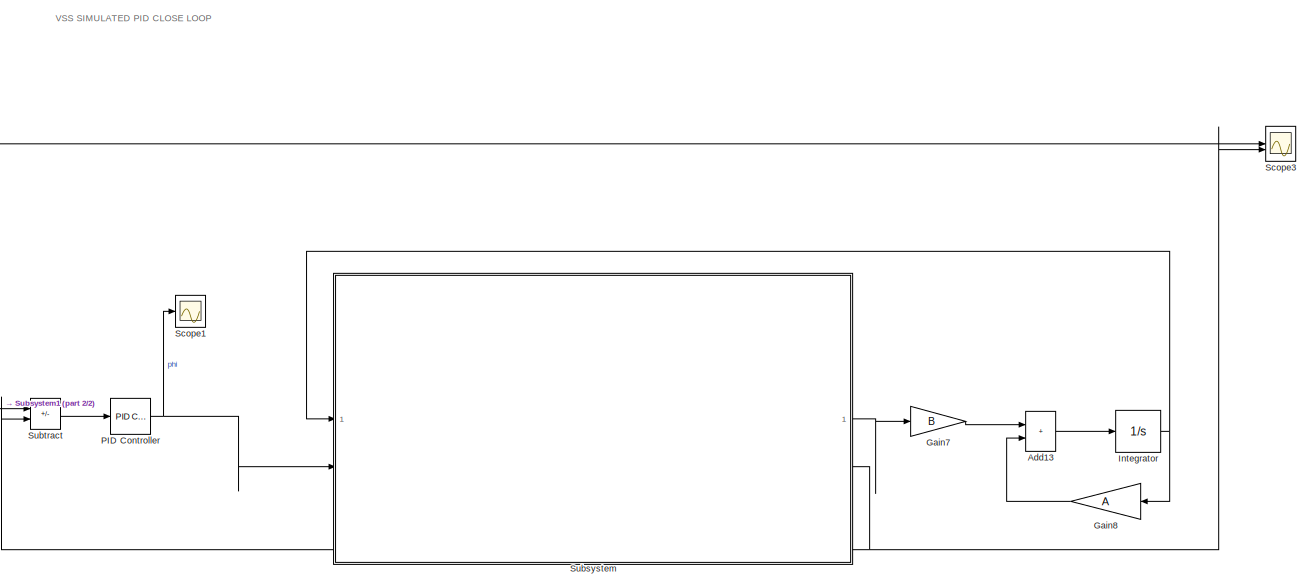
[diagram: root canvas - part 1/2, most of the canvas]
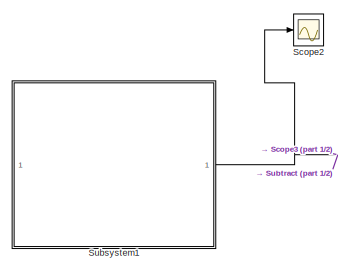
[diagram: root canvas - part 2/2, middle left region]
MODEL slx_037cbb7ec115
KIND model
CONFIG AbsTol = auto
CONFIG EnableMultiTasking = off
CONFIG FixedStep = 0.001
CONFIG MaxStep = auto
CONFIG MinStep = auto
CONFIG RelTol = 1e-7
CONFIG SampleTimeConstraint = Unconstrained
CONFIG SolverName = VariableStepAuto
CONFIG StartTime = 0.0
CONFIG StopTime = 10.0
BLOCK [Sum] Add13
  IconShape = rectangular
BLOCK [Gain] Gain7
  Gain = B
  Multiplication = Matrix(K*u)
BLOCK [Gain] Gain8
  Gain = A
  Multiplication = Matrix(K*u)
BLOCK [Integrator] Integrator
  InitialCondition = [0;0;-1.6;0;0;0]
BLOCK [Reference] PID Controller  REF=slpidlib/PID Controller
  LibrarySourceBlock = simulink/Continuous/PID Controller
  SourceBlock = slpidlib/PID Controller
  SourceType = PID 1dof
BLOCK [Scope] Scope1
  Floating = off
  NumInputPorts = 1
  ScopeSpecificationString = Simulink.scopes.TimeScopeBlockCfg('CurrentConfiguration', extmgr.ConfigurationSet(extmgr.Configuration('Core','General UI',true),extmgr.Configuration('Core','Source UI',true),extmgr.Configuration('Sources','WiredSimulink',true,'DataLoggingVariableName','ScopeData2'),extmgr.Configuration('Visuals','Time Domain',true,'TimeAxisLabels','All','SerializedDisplays',{struct('MinYLimReal','-3.34089','MaxYL...<+1553ch>
BLOCK [Scope] Scope2
  Floating = off
  NumInputPorts = 1
  ScopeSpecificationString = Simulink.scopes.TimeScopeBlockCfg('CurrentConfiguration', extmgr.ConfigurationSet(extmgr.Configuration('Core','General UI',true),extmgr.Configuration('Core','Source UI',true),extmgr.Configuration('Sources','WiredSimulink',true,'DataLoggingVariableName','ScopeData4'),extmgr.Configuration('Visuals','Time Domain',true,'TimeAxisLabels','All','SerializedDisplays',{struct('MinYLimReal','-0.1426','MaxYLi...<+1556ch>
BLOCK [Scope] Scope3
  Floating = off
  NumInputPorts = 2
  ScopeSpecificationString = Simulink.scopes.TimeScopeBlockCfg('CurrentConfiguration', extmgr.ConfigurationSet(extmgr.Configuration('Core','General UI',true),extmgr.Configuration('Core','Source UI',true),extmgr.Configuration('Sources','WiredSimulink',true,'DataLoggingVariableName','ScopeData1'),extmgr.Configuration('Visuals','Time Domain',true,'TimeAxisLabels','All','SerializedDisplays',{struct('MinYLimReal','-1.91481','MaxYL...<+1623ch>
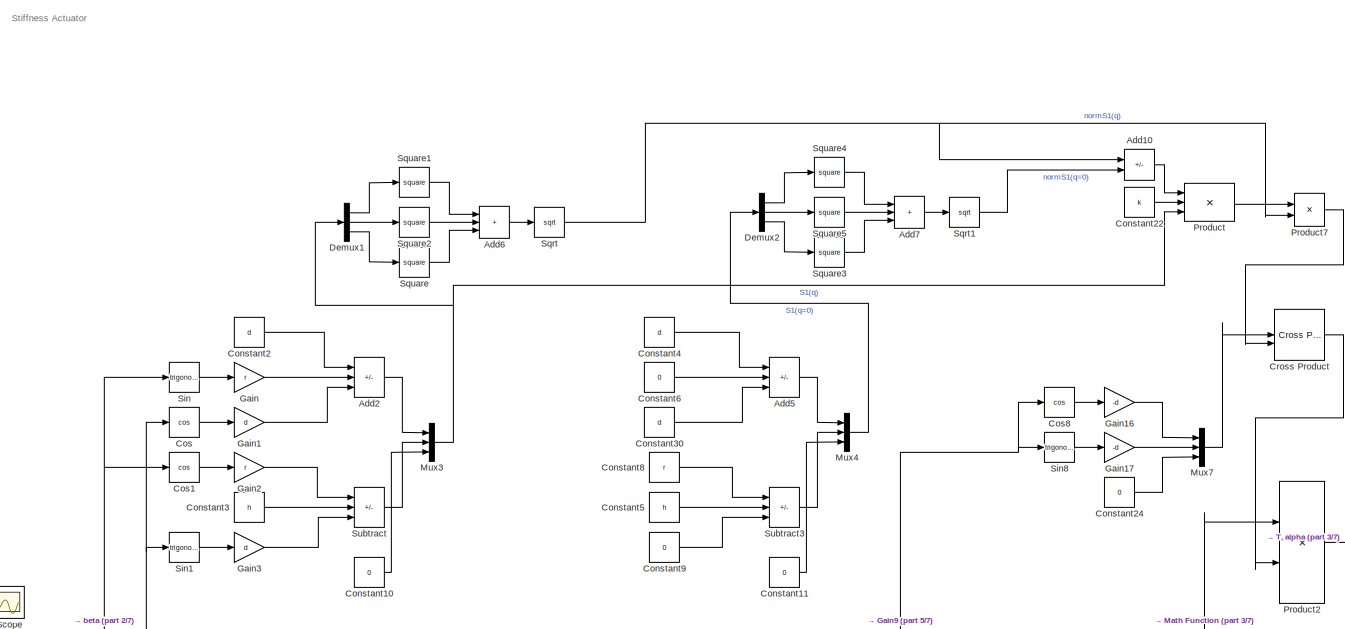
[diagram: Subsystem - part 1/7, top center region]
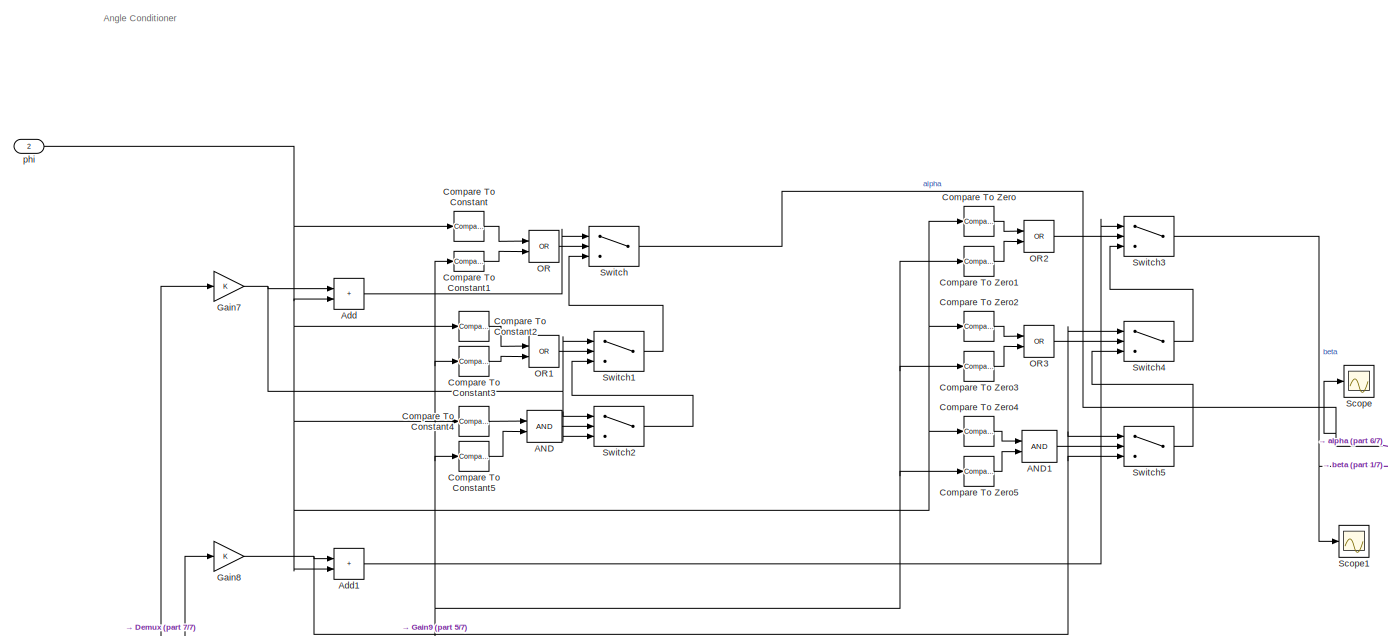
[diagram: Subsystem - part 2/7, top left region]
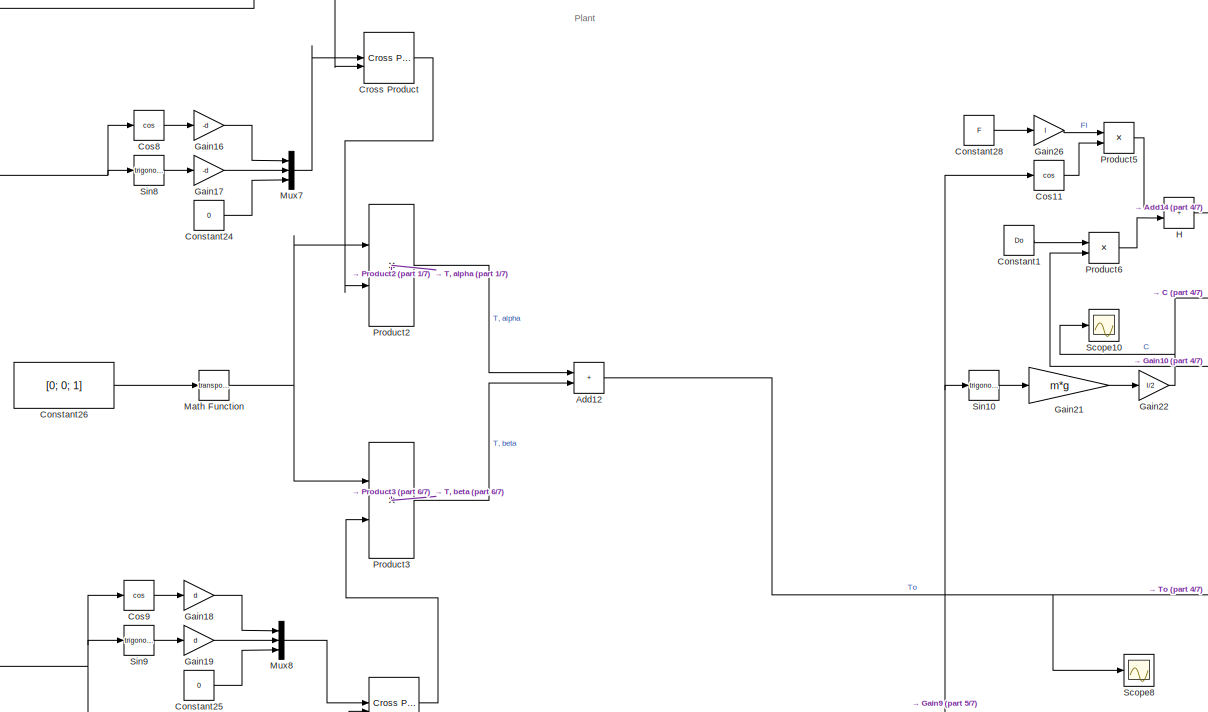
[diagram: Subsystem - part 3/7, top right region]
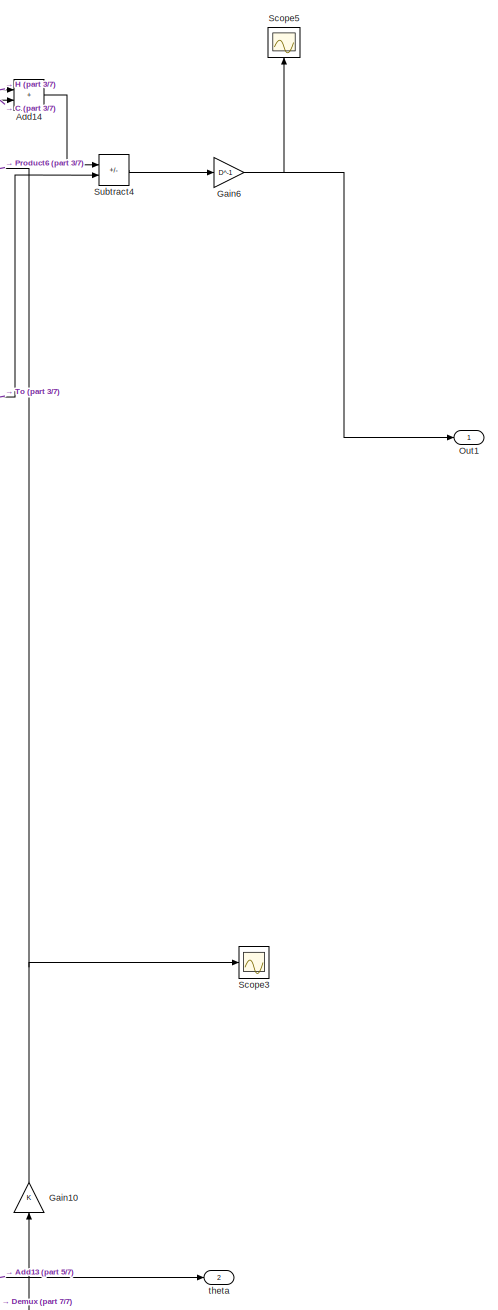
[diagram: Subsystem - part 4/7, middle right region]
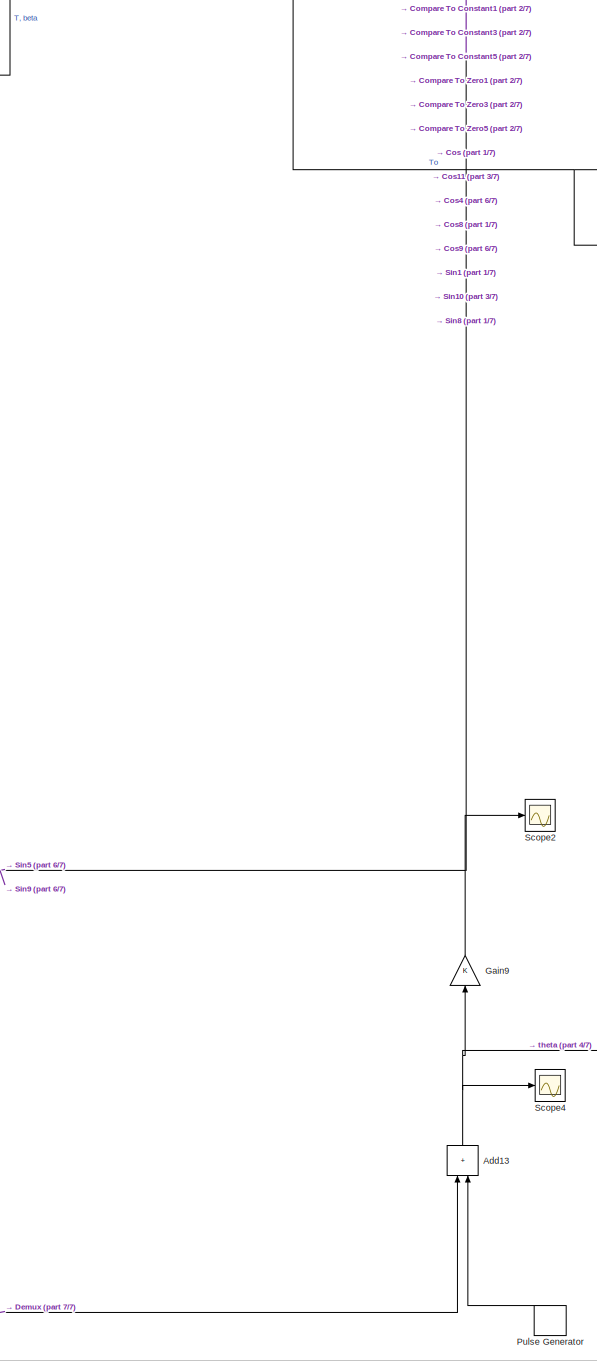
[diagram: Subsystem - part 5/7, middle right region]
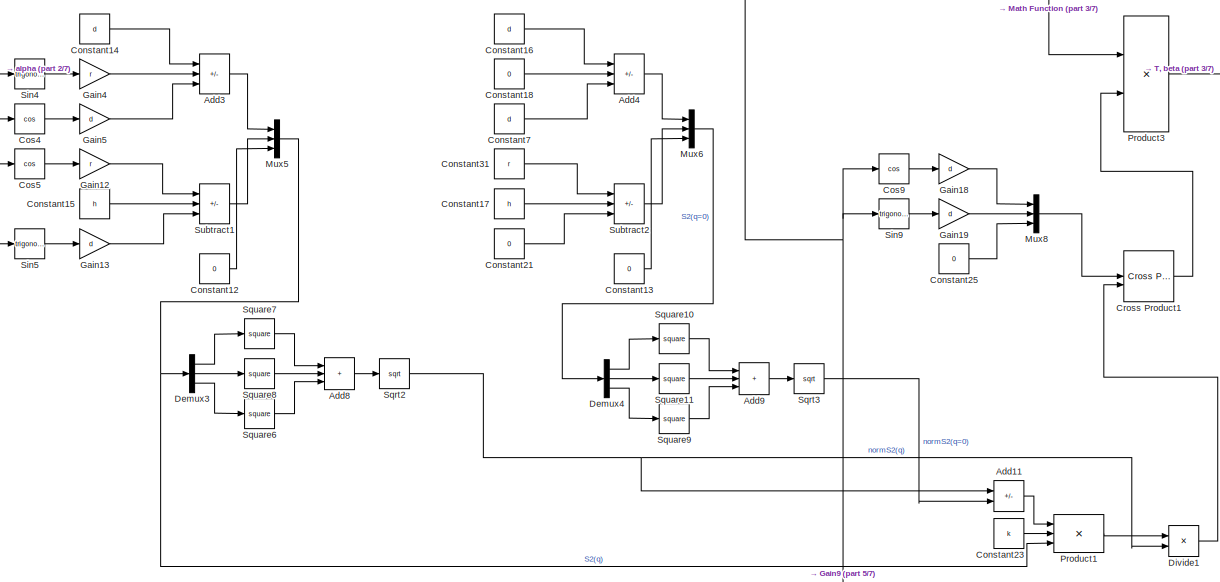
[diagram: Subsystem - part 6/7, central region]
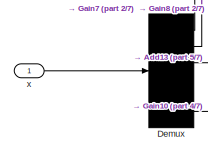
[diagram: Subsystem - part 7/7, bottom left region]
BLOCK [SubSystem] Subsystem
BLOCK [Logic] Subsystem/AND
  AllPortsSameDT = off
  IconShape = distinctive
  OutDataTypeStr = boolean
BLOCK [Logic] Subsystem/AND1
  AllPortsSameDT = off
  IconShape = distinctive
  OutDataTypeStr = boolean
BLOCK [Sum] Subsystem/Add
  IconShape = rectangular
BLOCK [Sum] Subsystem/Add1
  IconShape = rectangular
BLOCK [Sum] Subsystem/Add10
  IconShape = rectangular
  Inputs = +-
BLOCK [Sum] Subsystem/Add11
  IconShape = rectangular
  Inputs = +-
BLOCK [Sum] Subsystem/Add12
  IconShape = rectangular
BLOCK [Sum] Subsystem/Add13
  IconShape = rectangular
  NameLocation = right
BLOCK [Sum] Subsystem/Add14
  IconShape = rectangular
BLOCK [Sum] Subsystem/Add2
  IconShape = rectangular
  Inputs = ++-
BLOCK [Sum] Subsystem/Add3
  IconShape = rectangular
  Inputs = --+
BLOCK [Sum] Subsystem/Add4
  IconShape = rectangular
  Inputs = --+
BLOCK [Sum] Subsystem/Add5
  IconShape = rectangular
  Inputs = ++-
BLOCK [Sum] Subsystem/Add6
  IconShape = rectangular
  Inputs = +++
BLOCK [Sum] Subsystem/Add7
  IconShape = rectangular
  Inputs = +++
BLOCK [Sum] Subsystem/Add8
  IconShape = rectangular
  Inputs = +++
BLOCK [Sum] Subsystem/Add9
  IconShape = rectangular
  Inputs = +++
BLOCK [Reference] Subsystem/Compare To Constant  REF=simulink/Logic and Bit
Operations/Compare
To Constant
  SourceBlock = simulink/Logic and Bit\nOperations/Compare\nTo Constant
  SourceType = Compare To Constant
BLOCK [Reference] Subsystem/Compare To Constant1  REF=simulink/Logic and Bit
Operations/Compare
To Constant
  SourceBlock = simulink/Logic and Bit\nOperations/Compare\nTo Constant
  SourceType = Compare To Constant
BLOCK [Reference] Subsystem/Compare To Constant2  REF=simulink/Logic and Bit
Operations/Compare
To Constant
  SourceBlock = simulink/Logic and Bit\nOperations/Compare\nTo Constant
  SourceType = Compare To Constant
BLOCK [Reference] Subsystem/Compare To Constant3  REF=simulink/Logic and Bit
Operations/Compare
To Constant
  SourceBlock = simulink/Logic and Bit\nOperations/Compare\nTo Constant
  SourceType = Compare To Constant
BLOCK [Reference] Subsystem/Compare To Constant4  REF=simulink/Logic and Bit
Operations/Compare
To Constant
  SourceBlock = simulink/Logic and Bit\nOperations/Compare\nTo Constant
  SourceType = Compare To Constant
BLOCK [Reference] Subsystem/Compare To Constant5  REF=simulink/Logic and Bit
Operations/Compare
To Constant
  SourceBlock = simulink/Logic and Bit\nOperations/Compare\nTo Constant
  SourceType = Compare To Constant
BLOCK [Reference] Subsystem/Compare To Zero  REF=simulink/Logic and Bit
Operations/Compare
To Zero
  SourceBlock = simulink/Logic and Bit\nOperations/Compare\nTo Zero
  SourceType = Compare To Zero
BLOCK [Reference] Subsystem/Compare To Zero1  REF=simulink/Logic and Bit
Operations/Compare
To Zero
  SourceBlock = simulink/Logic and Bit\nOperations/Compare\nTo Zero
  SourceType = Compare To Zero
BLOCK [Reference] Subsystem/Compare To Zero2  REF=simulink/Logic and Bit
Operations/Compare
To Zero
  SourceBlock = simulink/Logic and Bit\nOperations/Compare\nTo Zero
  SourceType = Compare To Zero
BLOCK [Reference] Subsystem/Compare To Zero3  REF=simulink/Logic and Bit
Operations/Compare
To Zero
  SourceBlock = simulink/Logic and Bit\nOperations/Compare\nTo Zero
  SourceType = Compare To Zero
BLOCK [Reference] Subsystem/Compare To Zero4  REF=simulink/Logic and Bit
Operations/Compare
To Zero
  SourceBlock = simulink/Logic and Bit\nOperations/Compare\nTo Zero
  SourceType = Compare To Zero
BLOCK [Reference] Subsystem/Compare To Zero5  REF=simulink/Logic and Bit
Operations/Compare
To Zero
  SourceBlock = simulink/Logic and Bit\nOperations/Compare\nTo Zero
  SourceType = Compare To Zero
BLOCK [Constant] Subsystem/Constant1
  Value = Do
BLOCK [Constant] Subsystem/Constant10
  Value = 0
BLOCK [Constant] Subsystem/Constant11
  Value = 0
BLOCK [Constant] Subsystem/Constant12
  Value = 0
BLOCK [Constant] Subsystem/Constant13
  Value = 0
BLOCK [Constant] Subsystem/Constant14
  Value = d
BLOCK [Constant] Subsystem/Constant15
  Value = h
BLOCK [Constant] Subsystem/Constant16
  Value = d
BLOCK [Constant] Subsystem/Constant17
  Value = h
BLOCK [Constant] Subsystem/Constant18
  Value = 0
BLOCK [Constant] Subsystem/Constant2
  Value = d
BLOCK [Constant] Subsystem/Constant21
  Value = 0
BLOCK [Constant] Subsystem/Constant22
  Value = k
BLOCK [Constant] Subsystem/Constant23
  Value = k
BLOCK [Constant] Subsystem/Constant24
  Value = 0
BLOCK [Constant] Subsystem/Constant25
  Value = 0
BLOCK [Constant] Subsystem/Constant26
  Value = [0; 0; 1]
BLOCK [Constant] Subsystem/Constant28
  Value = F
BLOCK [Constant] Subsystem/Constant3
  Value = h
BLOCK [Constant] Subsystem/Constant30
  Value = d
BLOCK [Constant] Subsystem/Constant31
  Value = r
BLOCK [Constant] Subsystem/Constant4
  Value = d
BLOCK [Constant] Subsystem/Constant5
  Value = h
BLOCK [Constant] Subsystem/Constant6
  Value = 0
BLOCK [Constant] Subsystem/Constant7
  Value = d
BLOCK [Constant] Subsystem/Constant8
  Value = r
BLOCK [Constant] Subsystem/Constant9
  Value = 0
BLOCK [Trigonometry] Subsystem/Cos
  Operator = cos
BLOCK [Trigonometry] Subsystem/Cos1
  Operator = cos
BLOCK [Trigonometry] Subsystem/Cos11
  Operator = cos
BLOCK [Trigonometry] Subsystem/Cos4
  Operator = cos
BLOCK [Trigonometry] Subsystem/Cos5
  Operator = cos
BLOCK [Trigonometry] Subsystem/Cos8
  Operator = cos
BLOCK [Trigonometry] Subsystem/Cos9
  Operator = cos
BLOCK [Reference] Subsystem/Cross Product  REF=matrix_library/Cross Product
  SourceBlock = matrix_library/Cross Product
  SourceType = CrossProduct
BLOCK [Reference] Subsystem/Cross Product1  REF=matrix_library/Cross Product
  SourceBlock = matrix_library/Cross Product
  SourceType = CrossProduct
BLOCK [Demux] Subsystem/Demux
  Outputs = 6
BLOCK [Demux] Subsystem/Demux1
  Outputs = 3
BLOCK [Demux] Subsystem/Demux2
  Outputs = 3
BLOCK [Demux] Subsystem/Demux3
  Outputs = 3
BLOCK [Demux] Subsystem/Demux4
  Outputs = 3
BLOCK [Product] Subsystem/Divide1
  Inputs = */
BLOCK [Gain] Subsystem/Gain
  Gain = r
BLOCK [Gain] Subsystem/Gain1
  Gain = d
BLOCK [Gain] Subsystem/Gain10
  NameLocation = left
BLOCK [Gain] Subsystem/Gain12
  Gain = r
BLOCK [Gain] Subsystem/Gain13
  Gain = d
BLOCK [Gain] Subsystem/Gain16
  Gain = -d
BLOCK [Gain] Subsystem/Gain17
  Gain = -d
BLOCK [Gain] Subsystem/Gain18
  Gain = d
BLOCK [Gain] Subsystem/Gain19
  Gain = d
BLOCK [Gain] Subsystem/Gain2
  Gain = r
BLOCK [Gain] Subsystem/Gain21
  Gain = m*g
BLOCK [Gain] Subsystem/Gain22
  Gain = l/2
BLOCK [Gain] Subsystem/Gain26
  Gain = l
BLOCK [Gain] Subsystem/Gain3
  Gain = d
BLOCK [Gain] Subsystem/Gain4
  Gain = r
BLOCK [Gain] Subsystem/Gain5
  Gain = d
BLOCK [Gain] Subsystem/Gain6
  Gain = D^-1
BLOCK [Gain] Subsystem/Gain7
BLOCK [Gain] Subsystem/Gain8
BLOCK [Gain] Subsystem/Gain9
  NameLocation = left
BLOCK [Sum] Subsystem/H
  IconShape = rectangular
BLOCK [Math] Subsystem/Math Function
  Operator = transpose
BLOCK [Mux] Subsystem/Mux3
  DisplayOption = bar
  Inputs = 3
BLOCK [Mux] Subsystem/Mux4
  DisplayOption = bar
  Inputs = 3
BLOCK [Mux] Subsystem/Mux5
  DisplayOption = bar
  Inputs = 3
BLOCK [Mux] Subsystem/Mux6
  DisplayOption = bar
  Inputs = 3
BLOCK [Mux] Subsystem/Mux7
  DisplayOption = bar
  Inputs = 3
BLOCK [Mux] Subsystem/Mux8
  DisplayOption = bar
  Inputs = 3
BLOCK [Logic] Subsystem/OR
  AllPortsSameDT = off
  IconShape = distinctive
  Operator = OR
  OutDataTypeStr = boolean
BLOCK [Logic] Subsystem/OR1
  AllPortsSameDT = off
  IconShape = distinctive
  Operator = OR
  OutDataTypeStr = boolean
BLOCK [Logic] Subsystem/OR2
  AllPortsSameDT = off
  IconShape = distinctive
  Operator = OR
  OutDataTypeStr = boolean
BLOCK [Logic] Subsystem/OR3
  AllPortsSameDT = off
  IconShape = distinctive
  Operator = OR
  OutDataTypeStr = boolean
BLOCK [Outport] Subsystem/Out1
BLOCK [Product] Subsystem/Product
  Inputs = 3
BLOCK [Product] Subsystem/Product1
  Inputs = 3
BLOCK [Product] Subsystem/Product2
  Multiplication = Matrix(*)
BLOCK [Product] Subsystem/Product3
  Multiplication = Matrix(*)
BLOCK [Product] Subsystem/Product5
BLOCK [Product] Subsystem/Product6
BLOCK [Product] Subsystem/Product7
  Inputs = */
BLOCK [DiscretePulseGenerator] Subsystem/Pulse Generator
  Amplitude = 0.02
  NameLocation = right
  Period = 2.5
  PulseType = Time based
  PulseWidth = 0.5
BLOCK [Scope] Subsystem/Scope
  Floating = off
  NumInputPorts = 1
  ScopeSpecificationString = Simulink.scopes.TimeScopeBlockCfg('CurrentConfiguration', extmgr.ConfigurationSet(extmgr.Configuration('Core','General UI',true),extmgr.Configuration('Core','Source UI',true),extmgr.Configuration('Sources','WiredSimulink',true,'DataLoggingVariableName','ScopeData3'),extmgr.Configuration('Visuals','Time Domain',true,'SerializedDisplays',{struct('MinYLimReal','-3.31098','MaxYLimReal','29.59633','YLa...<+1487ch>
BLOCK [Scope] Subsystem/Scope1
  Floating = off
  NumInputPorts = 1
  ScopeSpecificationString = Simulink.scopes.TimeScopeBlockCfg('CurrentConfiguration', extmgr.ConfigurationSet(extmgr.Configuration('Core','General UI',true),extmgr.Configuration('Core','Source UI',true),extmgr.Configuration('Sources','WiredSimulink',true,'DataLoggingVariableName','ScopeData4'),extmgr.Configuration('Visuals','Time Domain',true,'SerializedDisplays',{struct('MinYLimReal','-1.8566','MaxYLimReal','0.18407','YLabe...<+1478ch>
BLOCK [Scope] Subsystem/Scope10
  Floating = off
  NumInputPorts = 1
  ScopeSpecificationString = Simulink.scopes.TimeScopeBlockCfg('CurrentConfiguration', extmgr.ConfigurationSet(extmgr.Configuration('Core','General UI',true),extmgr.Configuration('Core','Source UI',true),extmgr.Configuration('Sources','WiredSimulink',true,'DataLoggingVariableName','ScopeData8'),extmgr.Configuration('Visuals','Time Domain',true,'SerializedDisplays',{struct('MinYLimReal','-0.0000025','MaxYLimReal','0.0000061','...<+1500ch>
BLOCK [Scope] Subsystem/Scope2
  Floating = off
  NumInputPorts = 1
  ScopeSpecificationString = Simulink.scopes.TimeScopeBlockCfg('CurrentConfiguration', extmgr.ConfigurationSet(extmgr.Configuration('Core','General UI',true),extmgr.Configuration('Core','Source UI',true),extmgr.Configuration('Sources','WiredSimulink',true,'DataLoggingVariableName','ScopeData1'),extmgr.Configuration('Visuals','Time Domain',true,'SerializedDisplays',{struct('MinYLimReal','-1.00000','MaxYLimReal','1.00000','YLab...<+1483ch>
BLOCK [Scope] Subsystem/Scope3
  Floating = off
  NumInputPorts = 1
  ScopeSpecificationString = Simulink.scopes.TimeScopeBlockCfg('CurrentConfiguration', extmgr.ConfigurationSet(extmgr.Configuration('Core','General UI',true),extmgr.Configuration('Core','Source UI',true),extmgr.Configuration('Sources','WiredSimulink',true,'DataLoggingVariableName','ScopeData2'),extmgr.Configuration('Visuals','Time Domain',true,'SerializedDisplays',{struct('MinYLimReal','-1.00000','MaxYLimReal','1.00000','YLab...<+1484ch>
BLOCK [Scope] Subsystem/Scope4
  Floating = off
  NumInputPorts = 1
  ScopeSpecificationString = Simulink.scopes.TimeScopeBlockCfg('CurrentConfiguration', extmgr.ConfigurationSet(extmgr.Configuration('Core','General UI',true),extmgr.Configuration('Core','Source UI',true),extmgr.Configuration('Sources','WiredSimulink',true,'DataLoggingVariableName','ScopeData3'),extmgr.Configuration('Visuals','Time Domain',true,'SerializedDisplays',{struct('MinYLimReal','-1.8616','MaxYLimReal','0.22907','YLabe...<+1479ch>
BLOCK [Scope] Subsystem/Scope5
  Floating = off
  NameLocation = right
  NumInputPorts = 1
  ScopeSpecificationString = Simulink.scopes.TimeScopeBlockCfg('CurrentConfiguration', extmgr.ConfigurationSet(extmgr.Configuration('Core','General UI',true),extmgr.Configuration('Core','Source UI',true),extmgr.Configuration('Sources','WiredSimulink',true,'DataLoggingVariableName','ScopeData1'),extmgr.Configuration('Visuals','Time Domain',true,'SerializedDisplays',{struct('MinYLimReal','-3049081.11607','MaxYLimReal','1086109....<+1499ch>
BLOCK [Scope] Subsystem/Scope8
  Floating = off
  NumInputPorts = 1
  ScopeSpecificationString = Simulink.scopes.TimeScopeBlockCfg('CurrentConfiguration', extmgr.ConfigurationSet(extmgr.Configuration('Core','General UI',true),extmgr.Configuration('Core','Source UI',true),extmgr.Configuration('Sources','WiredSimulink',true,'DataLoggingVariableName','ScopeData6'),extmgr.Configuration('Visuals','Time Domain',true,'TimeAxisLabels','All','SerializedDisplays',{struct('MinYLimReal','-0.00381','MaxYL...<+1550ch>
BLOCK [Trigonometry] Subsystem/Sin
BLOCK [Trigonometry] Subsystem/Sin1
BLOCK [Trigonometry] Subsystem/Sin10
BLOCK [Trigonometry] Subsystem/Sin4
BLOCK [Trigonometry] Subsystem/Sin5
BLOCK [Trigonometry] Subsystem/Sin8
BLOCK [Trigonometry] Subsystem/Sin9
BLOCK [Sqrt] Subsystem/Sqrt
BLOCK [Sqrt] Subsystem/Sqrt1
BLOCK [Sqrt] Subsystem/Sqrt2
BLOCK [Sqrt] Subsystem/Sqrt3
BLOCK [Math] Subsystem/Square
  Operator = square
BLOCK [Math] Subsystem/Square1
  Operator = square
BLOCK [Math] Subsystem/Square10
  Operator = square
BLOCK [Math] Subsystem/Square11
  Operator = square
BLOCK [Math] Subsystem/Square2
  Operator = square
BLOCK [Math] Subsystem/Square3
  Operator = square
BLOCK [Math] Subsystem/Square4
  Operator = square
BLOCK [Math] Subsystem/Square5
  Operator = square
BLOCK [Math] Subsystem/Square6
  Operator = square
BLOCK [Math] Subsystem/Square7
  Operator = square
BLOCK [Math] Subsystem/Square8
  Operator = square
BLOCK [Math] Subsystem/Square9
  Operator = square
BLOCK [Sum] Subsystem/Subtract
  IconShape = rectangular
  Inputs = ---
BLOCK [Sum] Subsystem/Subtract1
  IconShape = rectangular
  Inputs = --+
BLOCK [Sum] Subsystem/Subtract2
  IconShape = rectangular
  Inputs = --+
BLOCK [Sum] Subsystem/Subtract3
  IconShape = rectangular
  Inputs = ---
BLOCK [Sum] Subsystem/Subtract4
  IconShape = rectangular
  Inputs = -+
BLOCK [Switch] Subsystem/Switch
  Criteria = u2 > Threshold
  InputSameDT = off
  SaturateOnIntegerOverflow = off
  Threshold = 0.5
BLOCK [Switch] Subsystem/Switch1
  Criteria = u2 > Threshold
  InputSameDT = off
  SaturateOnIntegerOverflow = off
  Threshold = 0.5
BLOCK [Switch] Subsystem/Switch2
  Criteria = u2 > Threshold
  InputSameDT = off
  SaturateOnIntegerOverflow = off
  Threshold = 0.5
BLOCK [Switch] Subsystem/Switch3
  Criteria = u2 > Threshold
  InputSameDT = off
  SaturateOnIntegerOverflow = off
  Threshold = 0.5
BLOCK [Switch] Subsystem/Switch4
  Criteria = u2 > Threshold
  InputSameDT = off
  SaturateOnIntegerOverflow = off
  Threshold = 0.5
BLOCK [Switch] Subsystem/Switch5
  Criteria = u2 > Threshold
  InputSameDT = off
  SaturateOnIntegerOverflow = off
  Threshold = 0.5
BLOCK [Inport] Subsystem/phi
  Port = 2
BLOCK [Outport] Subsystem/theta
  Port = 2
BLOCK [Inport] Subsystem/x
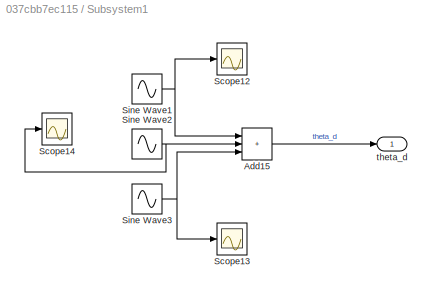
BLOCK [SubSystem] Subsystem1
BLOCK [Sum] Subsystem1/Add15
  IconShape = rectangular
  Inputs = +++
BLOCK [Scope] Subsystem1/Scope12
  Floating = off
  NumInputPorts = 1
  ScopeSpecificationString = Simulink.scopes.TimeScopeBlockCfg('CurrentConfiguration', extmgr.ConfigurationSet(extmgr.Configuration('Core','General UI',true),extmgr.Configuration('Core','Source UI',true),extmgr.Configuration('Sources','WiredSimulink',true,'DataLoggingVariableName','ScopeData1'),extmgr.Configuration('Visuals','Time Domain',true,'SerializedDisplays',{struct('MinYLimReal','-0.12491','MaxYLimReal','0.12465','YLab...<+1488ch>
BLOCK [Scope] Subsystem1/Scope13
  Floating = off
  NumInputPorts = 1
  ScopeSpecificationString = Simulink.scopes.TimeScopeBlockCfg('CurrentConfiguration', extmgr.ConfigurationSet(extmgr.Configuration('Core','General UI',true),extmgr.Configuration('Core','Source UI',true),extmgr.Configuration('Sources','WiredSimulink',true,'DataLoggingVariableName','ScopeData2'),extmgr.Configuration('Visuals','Time Domain',true,'SerializedDisplays',{struct('MinYLimReal','-0.01874','MaxYLimReal','0.01868','YLab...<+1488ch>
BLOCK [Scope] Subsystem1/Scope14
  Floating = off
  NumInputPorts = 1
  ScopeSpecificationString = Simulink.scopes.TimeScopeBlockCfg('CurrentConfiguration', extmgr.ConfigurationSet(extmgr.Configuration('Core','General UI',true),extmgr.Configuration('Core','Source UI',true),extmgr.Configuration('Sources','WiredSimulink',true,'DataLoggingVariableName','ScopeData3'),extmgr.Configuration('Visuals','Time Domain',true),extmgr.Configuration('Tools','Plot Navigation',true),extmgr.Configuration('Tools',...<+40ch>
BLOCK [Sin] Subsystem1/Sine Wave1
  Amplitude = 0.1
  Frequency = 2
  Phase = pi
  SampleTime = 0
BLOCK [Sin] Subsystem1/Sine Wave2
  Amplitude = 0.03
  Frequency = 4
  Phase = pi
  SampleTime = 0
BLOCK [Sin] Subsystem1/Sine Wave3
  Amplitude = 0.015
  Frequency = 6
  Phase = pi
  SampleTime = 0
BLOCK [Outport] Subsystem1/theta_d
BLOCK [Sum] Subtract
  IconShape = rectangular
  Inputs = +-
ANNOTATION (root): VSS SIMULATED PID CLOSE LOOP
ANNOTATION Subsystem: Angle Conditioner
ANNOTATION Subsystem: Plant
ANNOTATION Subsystem: Stiffness Actuator
LINE Add13:1 -> Integrator:1
LINE Gain7:1 -> Add13:1
LINE Gain8:1 -> Add13:2
NET Integrator:1 -> Gain8:1, Subsystem:1
NET PID Controller:1 -> Scope1:1, Subsystem:2
LINE Subsystem/AND1:1 -> Subsystem/Switch5:2
LINE Subsystem/AND:1 -> Subsystem/Switch2:2
LINE Subsystem/Add10:1 -> Subsystem/Product:1
LINE Subsystem/Add11:1 -> Subsystem/Product1:1
NET Subsystem/Add12:1 -> Subsystem/Scope8:1, Subsystem/Subtract4:2
NET Subsystem/Add13:1 -> Subsystem/Gain9:1, Subsystem/Scope4:1, Subsystem/theta:1
LINE Subsystem/Add14:1 -> Subsystem/Subtract4:1
LINE Subsystem/Add1:1 -> Subsystem/Switch3:1
LINE Subsystem/Add2:1 -> Subsystem/Mux3:1
LINE Subsystem/Add3:1 -> Subsystem/Mux5:1
LINE Subsystem/Add4:1 -> Subsystem/Mux6:1
LINE Subsystem/Add5:1 -> Subsystem/Mux4:1
LINE Subsystem/Add6:1 -> Subsystem/Sqrt:1
LINE Subsystem/Add7:1 -> Subsystem/Sqrt1:1
LINE Subsystem/Add8:1 -> Subsystem/Sqrt2:1
LINE Subsystem/Add9:1 -> Subsystem/Sqrt3:1
LINE Subsystem/Add:1 -> Subsystem/Switch:1
LINE Subsystem/Compare To Constant1:1 -> Subsystem/OR:2
LINE Subsystem/Compare To Constant2:1 -> Subsystem/OR1:1
LINE Subsystem/Compare To Constant3:1 -> Subsystem/OR1:2
LINE Subsystem/Compare To Constant4:1 -> Subsystem/AND:1
LINE Subsystem/Compare To Constant5:1 -> Subsystem/AND:2
LINE Subsystem/Compare To Constant:1 -> Subsystem/OR:1
LINE Subsystem/Compare To Zero1:1 -> Subsystem/OR2:2
LINE Subsystem/Compare To Zero2:1 -> Subsystem/OR3:1
LINE Subsystem/Compare To Zero3:1 -> Subsystem/OR3:2
LINE Subsystem/Compare To Zero4:1 -> Subsystem/AND1:1
LINE Subsystem/Compare To Zero5:1 -> Subsystem/AND1:2
LINE Subsystem/Compare To Zero:1 -> Subsystem/OR2:1
LINE Subsystem/Constant10:1 -> Subsystem/Mux3:3
LINE Subsystem/Constant11:1 -> Subsystem/Mux4:3
LINE Subsystem/Constant12:1 -> Subsystem/Mux5:3
LINE Subsystem/Constant13:1 -> Subsystem/Mux6:3
LINE Subsystem/Constant14:1 -> Subsystem/Add3:1
LINE Subsystem/Constant15:1 -> Subsystem/Subtract1:2
LINE Subsystem/Constant16:1 -> Subsystem/Add4:1
LINE Subsystem/Constant17:1 -> Subsystem/Subtract2:2
LINE Subsystem/Constant18:1 -> Subsystem/Add4:2
LINE Subsystem/Constant1:1 -> Subsystem/Product6:1
LINE Subsystem/Constant21:1 -> Subsystem/Subtract2:3
LINE Subsystem/Constant22:1 -> Subsystem/Product:2
LINE Subsystem/Constant23:1 -> Subsystem/Product1:2
LINE Subsystem/Constant24:1 -> Subsystem/Mux7:3
LINE Subsystem/Constant25:1 -> Subsystem/Mux8:3
LINE Subsystem/Constant26:1 -> Subsystem/Math Function:1
LINE Subsystem/Constant28:1 -> Subsystem/Gain26:1
LINE Subsystem/Constant2:1 -> Subsystem/Add2:1
LINE Subsystem/Constant30:1 -> Subsystem/Add5:3
LINE Subsystem/Constant31:1 -> Subsystem/Subtract2:1
LINE Subsystem/Constant3:1 -> Subsystem/Subtract:2
LINE Subsystem/Constant4:1 -> Subsystem/Add5:1
LINE Subsystem/Constant5:1 -> Subsystem/Subtract3:2
LINE Subsystem/Constant6:1 -> Subsystem/Add5:2
LINE Subsystem/Constant7:1 -> Subsystem/Add4:3
LINE Subsystem/Constant8:1 -> Subsystem/Subtract3:1
LINE Subsystem/Constant9:1 -> Subsystem/Subtract3:3
LINE Subsystem/Cos11:1 -> Subsystem/Product5:2
LINE Subsystem/Cos1:1 -> Subsystem/Gain2:1
LINE Subsystem/Cos4:1 -> Subsystem/Gain5:1
LINE Subsystem/Cos5:1 -> Subsystem/Gain12:1
LINE Subsystem/Cos8:1 -> Subsystem/Gain16:1
LINE Subsystem/Cos9:1 -> Subsystem/Gain18:1
LINE Subsystem/Cos:1 -> Subsystem/Gain1:1
LINE Subsystem/Cross Product1:1 -> Subsystem/Product3:2
LINE Subsystem/Cross Product:1 -> Subsystem/Product2:2
LINE Subsystem/Demux1:1 -> Subsystem/Square1:1
LINE Subsystem/Demux1:2 -> Subsystem/Square2:1
LINE Subsystem/Demux1:3 -> Subsystem/Square:1
LINE Subsystem/Demux2:1 -> Subsystem/Square4:1
LINE Subsystem/Demux2:2 -> Subsystem/Square5:1
LINE Subsystem/Demux2:3 -> Subsystem/Square3:1
LINE Subsystem/Demux3:1 -> Subsystem/Square7:1
LINE Subsystem/Demux3:2 -> Subsystem/Square8:1
LINE Subsystem/Demux3:3 -> Subsystem/Square6:1
LINE Subsystem/Demux4:1 -> Subsystem/Square10:1
LINE Subsystem/Demux4:2 -> Subsystem/Square11:1
LINE Subsystem/Demux4:3 -> Subsystem/Square9:1
LINE Subsystem/Demux:1 -> Subsystem/Gain7:1
LINE Subsystem/Demux:2 -> Subsystem/Gain8:1
LINE Subsystem/Demux:3 -> Subsystem/Add13:1
LINE Subsystem/Demux:6 -> Subsystem/Gain10:1
LINE Subsystem/Divide1:1 -> Subsystem/Cross Product1:2
NET Subsystem/Gain10:1 -> Subsystem/Product6:2, Subsystem/Scope3:1
LINE Subsystem/Gain12:1 -> Subsystem/Subtract1:1
LINE Subsystem/Gain13:1 -> Subsystem/Subtract1:3
LINE Subsystem/Gain16:1 -> Subsystem/Mux7:1
LINE Subsystem/Gain17:1 -> Subsystem/Mux7:2
LINE Subsystem/Gain18:1 -> Subsystem/Mux8:1
LINE Subsystem/Gain19:1 -> Subsystem/Mux8:2
LINE Subsystem/Gain1:1 -> Subsystem/Add2:3
LINE Subsystem/Gain21:1 -> Subsystem/Gain22:1
NET Subsystem/Gain22:1 -> Subsystem/Add14:2, Subsystem/Scope10:1
LINE Subsystem/Gain26:1 -> Subsystem/Product5:1
LINE Subsystem/Gain2:1 -> Subsystem/Subtract:1
LINE Subsystem/Gain3:1 -> Subsystem/Subtract:3
LINE Subsystem/Gain4:1 -> Subsystem/Add3:2
LINE Subsystem/Gain5:1 -> Subsystem/Add3:3
NET Subsystem/Gain6:1 -> Subsystem/Out1:1, Subsystem/Scope5:1
NET Subsystem/Gain7:1 -> Subsystem/Add:1, Subsystem/Switch1:1, Subsystem/Switch2:1, Subsystem/Switch2:3
NET Subsystem/Gain8:1 -> Subsystem/Add1:1, Subsystem/Switch4:1, Subsystem/Switch5:1, Subsystem/Switch5:3
NET Subsystem/Gain9:1 -> Subsystem/Compare To Constant1:1, Subsystem/Compare To Constant3:1, Subsystem/Compare To Constant5:1, Subsystem/Compare To Zero1:1, Subsystem/Compare To Zero3:1, Subsystem/Compare To Zero5:1, Subsystem/Cos11:1, Subsystem/Cos4:1, Subsystem/Cos8:1, Subsystem/Cos9:1, Subsystem/Cos:1, Subsystem/Scope2:1, Subsystem/Sin10:1, Subsystem/Sin1:1, Subsystem/Sin5:1, Subsystem/Sin8:1, Subsystem/Sin9:1
LINE Subsystem/Gain:1 -> Subsystem/Add2:2
LINE Subsystem/H:1 -> Subsystem/Add14:1
NET Subsystem/Math Function:1 -> Subsystem/Product2:1, Subsystem/Product3:1
NET Subsystem/Mux3:1 -> Subsystem/Demux1:1, Subsystem/Product:3
LINE Subsystem/Mux4:1 -> Subsystem/Demux2:1
NET Subsystem/Mux5:1 -> Subsystem/Demux3:1, Subsystem/Product1:3
LINE Subsystem/Mux6:1 -> Subsystem/Demux4:1
LINE Subsystem/Mux7:1 -> Subsystem/Cross Product:1
LINE Subsystem/Mux8:1 -> Subsystem/Cross Product1:1
LINE Subsystem/OR1:1 -> Subsystem/Switch1:2
LINE Subsystem/OR2:1 -> Subsystem/Switch3:2
LINE Subsystem/OR3:1 -> Subsystem/Switch4:2
LINE Subsystem/OR:1 -> Subsystem/Switch:2
LINE Subsystem/Product1:1 -> Subsystem/Divide1:1
LINE Subsystem/Product2:1 -> Subsystem/Add12:1
LINE Subsystem/Product3:1 -> Subsystem/Add12:2
LINE Subsystem/Product5:1 -> Subsystem/H:1
LINE Subsystem/Product6:1 -> Subsystem/H:2
LINE Subsystem/Product7:1 -> Subsystem/Cross Product:2
LINE Subsystem/Product:1 -> Subsystem/Product7:1
LINE Subsystem/Pulse Generator:1 -> Subsystem/Add13:2
LINE Subsystem/Sin10:1 -> Subsystem/Gain21:1
LINE Subsystem/Sin1:1 -> Subsystem/Gain3:1
LINE Subsystem/Sin4:1 -> Subsystem/Gain4:1
LINE Subsystem/Sin5:1 -> Subsystem/Gain13:1
LINE Subsystem/Sin8:1 -> Subsystem/Gain17:1
LINE Subsystem/Sin9:1 -> Subsystem/Gain19:1
LINE Subsystem/Sin:1 -> Subsystem/Gain:1
LINE Subsystem/Sqrt1:1 -> Subsystem/Add10:2
NET Subsystem/Sqrt2:1 -> Subsystem/Add11:1, Subsystem/Divide1:2
LINE Subsystem/Sqrt3:1 -> Subsystem/Add11:2
NET Subsystem/Sqrt:1 -> Subsystem/Add10:1, Subsystem/Product7:2
LINE Subsystem/Square10:1 -> Subsystem/Add9:1
LINE Subsystem/Square11:1 -> Subsystem/Add9:2
LINE Subsystem/Square1:1 -> Subsystem/Add6:1
LINE Subsystem/Square2:1 -> Subsystem/Add6:2
LINE Subsystem/Square3:1 -> Subsystem/Add7:3
LINE Subsystem/Square4:1 -> Subsystem/Add7:1
LINE Subsystem/Square5:1 -> Subsystem/Add7:2
LINE Subsystem/Square6:1 -> Subsystem/Add8:3
LINE Subsystem/Square7:1 -> Subsystem/Add8:1
LINE Subsystem/Square8:1 -> Subsystem/Add8:2
LINE Subsystem/Square9:1 -> Subsystem/Add9:3
LINE Subsystem/Square:1 -> Subsystem/Add6:3
LINE Subsystem/Subtract1:1 -> Subsystem/Mux5:2
LINE Subsystem/Subtract2:1 -> Subsystem/Mux6:2
LINE Subsystem/Subtract3:1 -> Subsystem/Mux4:2
LINE Subsystem/Subtract4:1 -> Subsystem/Gain6:1
LINE Subsystem/Subtract:1 -> Subsystem/Mux3:2
LINE Subsystem/Switch1:1 -> Subsystem/Switch:3
LINE Subsystem/Switch2:1 -> Subsystem/Switch1:3
NET Subsystem/Switch3:1 -> Subsystem/Cos1:1, Subsystem/Scope1:1, Subsystem/Sin:1
LINE Subsystem/Switch4:1 -> Subsystem/Switch3:3
LINE Subsystem/Switch5:1 -> Subsystem/Switch4:3
NET Subsystem/Switch:1 -> Subsystem/Cos5:1, Subsystem/Scope:1, Subsystem/Sin4:1
NET Subsystem/phi:1 -> Subsystem/Add1:2, Subsystem/Add:2, Subsystem/Compare To Constant2:1, Subsystem/Compare To Constant4:1, Subsystem/Compare To Constant:1, Subsystem/Compare To Zero2:1, Subsystem/Compare To Zero4:1, Subsystem/Compare To Zero:1
LINE Subsystem/x:1 -> Subsystem/Demux:1
LINE Subsystem1/Add15:1 -> Subsystem1/theta_d:1
NET Subsystem1/Sine Wave1:1 -> Subsystem1/Add15:1, Subsystem1/Scope12:1
NET Subsystem1/Sine Wave2:1 -> Subsystem1/Add15:2, Subsystem1/Scope14:1
NET Subsystem1/Sine Wave3:1 -> Subsystem1/Add15:3, Subsystem1/Scope13:1
NET Subsystem1:1 -> Scope2:1, Scope3:1, Subtract:1
LINE Subsystem:1 -> Gain7:1
NET Subsystem:2 -> Scope3:2, Subtract:2
LINE Subtract:1 -> PID Controller:1
note: NET lines group one-source signal fan-out (src -> all destinations, sorted); 1:1 wires keep LINE
